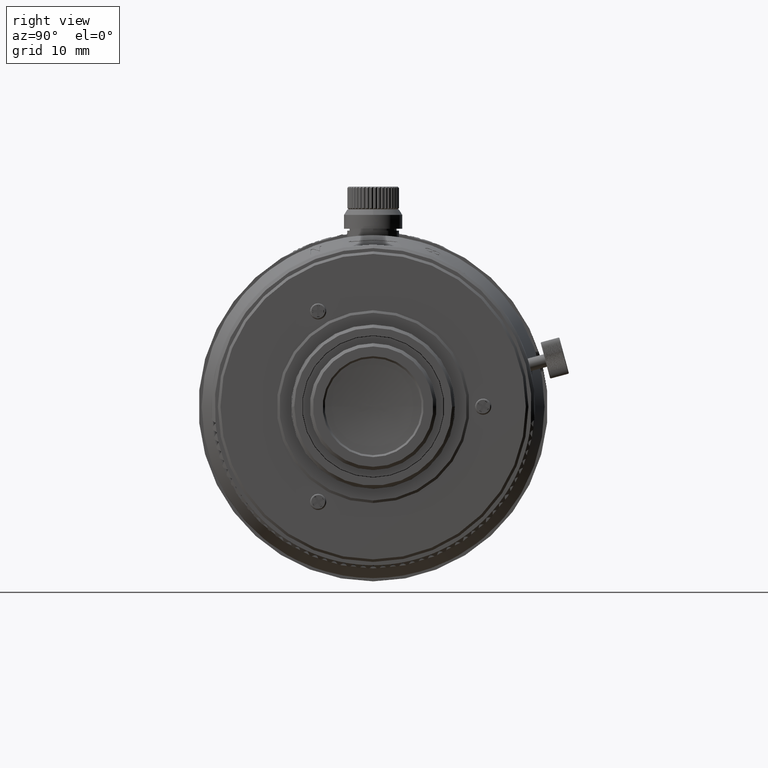
[diagram: clean part render]
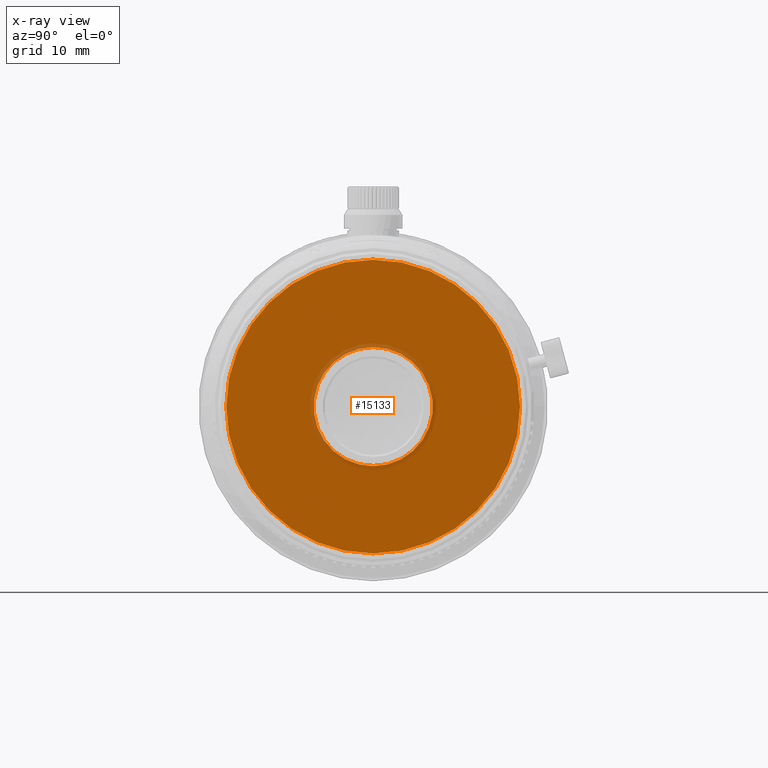
[diagram: x-ray — body ghosted, one internal face saturated and labeled with its STEP entity id]
A machine part, right view, then the same camera in x-ray: the body is ghosted and one INTERNAL B-rep face — a face not visible from any outside direction — is saturated and labeled: STEP entity #15133.
In plain terms, the highlighted planar face has unit normal (1, 0, 0).
Its self-contained STEP definition (entity closure, byte-faithful):
#685 = AXIS2_PLACEMENT_3D ( 'NONE', #24473, #48686, #18514 ) ;
#2516 = CARTESIAN_POINT ( 'NONE',  ( 2674.241385648999767, 1132.760967307000101, 9.200000203999913140 ) ) ;
#2595 = VERTEX_POINT ( 'NONE', #46198 ) ;
#4412 = VERTEX_POINT ( 'NONE', #6639 ) ;
#6639 = CARTESIAN_POINT ( 'NONE',  ( 2674.241385648999767, 1132.760967307000101, -22.70000055400011973 ) ) ;
#7273 = DIRECTION ( 'NONE',  ( 0.000000000000000000, 0.000000000000000000, -1.000000000000000000 ) ) ;
#7948 = PLANE ( 'NONE',  #19200 ) ;
#14312 = FACE_BOUND ( 'NONE', #55447, .T. ) ;
#15133 = ADVANCED_FACE ( 'NONE', ( #14312, #19465 ), #7948, .T. ) ;
#15711 = CARTESIAN_POINT ( 'NONE',  ( 2674.241385648999767, 1132.760967307000101, 0.000000000000000000 ) ) ;
#17223 = DIRECTION ( 'NONE',  ( -1.000000000000000000, -0.000000000000000000, -0.000000000000000000 ) ) ;
#17850 = EDGE_CURVE ( 'NONE', #61920, #4412, #36074, .T. ) ;
#18514 = DIRECTION ( 'NONE',  ( 0.000000000000000000, 0.000000000000000000, -1.000000000000000000 ) ) ;
#18681 = AXIS2_PLACEMENT_3D ( 'NONE', #34686, #17223, #66432 ) ;
#19059 = EDGE_LOOP ( 'NONE', ( #37500, #74417 ) ) ;
#19200 = AXIS2_PLACEMENT_3D ( 'NONE', #32171, #74673, #62768 ) ;
#19341 = EDGE_CURVE ( 'NONE', #4412, #61920, #59059, .T. ) ;
#19465 = FACE_OUTER_BOUND ( 'NONE', #19059, .T. ) ;
#22782 = EDGE_CURVE ( 'NONE', #35773, #2595, #32633, .T. ) ;
#23609 = AXIS2_PLACEMENT_3D ( 'NONE', #55331, #67610, #7273 ) ;
#24473 = CARTESIAN_POINT ( 'NONE',  ( 2674.241385648999767, 1132.760967307000101, 0.000000000000000000 ) ) ;
#32171 = CARTESIAN_POINT ( 'NONE',  ( 2674.241385648999767, 1109.152966731000561, -23.62711809336000002 ) ) ;
#32633 = CIRCLE ( 'NONE', #18681, 9.200000203999913140 ) ;
#32796 = DIRECTION ( 'NONE',  ( 0.000000000000000000, 0.000000000000000000, -1.000000000000000000 ) ) ;
#34686 = CARTESIAN_POINT ( 'NONE',  ( 2674.241385648999767, 1132.760967307000101, 0.000000000000000000 ) ) ;
#35773 = VERTEX_POINT ( 'NONE', #2516 ) ;
#36074 = CIRCLE ( 'NONE', #65283, 22.70000055400011973 ) ;
#37500 = ORIENTED_EDGE ( 'NONE', *, *, #19341, .F. ) ;
#45211 = CIRCLE ( 'NONE', #23609, 9.200000203999913140 ) ;
#46198 = CARTESIAN_POINT ( 'NONE',  ( 2674.241385648999767, 1132.760967307000101, -9.200000203999913140 ) ) ;
#48686 = DIRECTION ( 'NONE',  ( -1.000000000000000000, -0.000000000000000000, -0.000000000000000000 ) ) ;
#52623 = DIRECTION ( 'NONE',  ( -1.000000000000000000, -0.000000000000000000, -0.000000000000000000 ) ) ;
#52808 = CARTESIAN_POINT ( 'NONE',  ( 2674.241385648999767, 1132.760967307000101, 22.70000055400011973 ) ) ;
#55331 = CARTESIAN_POINT ( 'NONE',  ( 2674.241385648999767, 1132.760967307000101, 0.000000000000000000 ) ) ;
#55447 = EDGE_LOOP ( 'NONE', ( #57500, #61664 ) ) ;
#57500 = ORIENTED_EDGE ( 'NONE', *, *, #63707, .T. ) ;
#59059 = CIRCLE ( 'NONE', #685, 22.70000055400011973 ) ;
#61664 = ORIENTED_EDGE ( 'NONE', *, *, #22782, .T. ) ;
#61920 = VERTEX_POINT ( 'NONE', #52808 ) ;
#62768 = DIRECTION ( 'NONE',  ( 0.000000000000000000, 1.000000000000000000, 0.000000000000000000 ) ) ;
#63707 = EDGE_CURVE ( 'NONE', #2595, #35773, #45211, .T. ) ;
#65283 = AXIS2_PLACEMENT_3D ( 'NONE', #15711, #52623, #32796 ) ;
#66432 = DIRECTION ( 'NONE',  ( 0.000000000000000000, 0.000000000000000000, -1.000000000000000000 ) ) ;
#67610 = DIRECTION ( 'NONE',  ( -1.000000000000000000, -0.000000000000000000, -0.000000000000000000 ) ) ;
#74417 = ORIENTED_EDGE ( 'NONE', *, *, #17850, .F. ) ;
#74673 = DIRECTION ( 'NONE',  ( 1.000000000000000000, 0.000000000000000000, 0.000000000000000000 ) ) ;